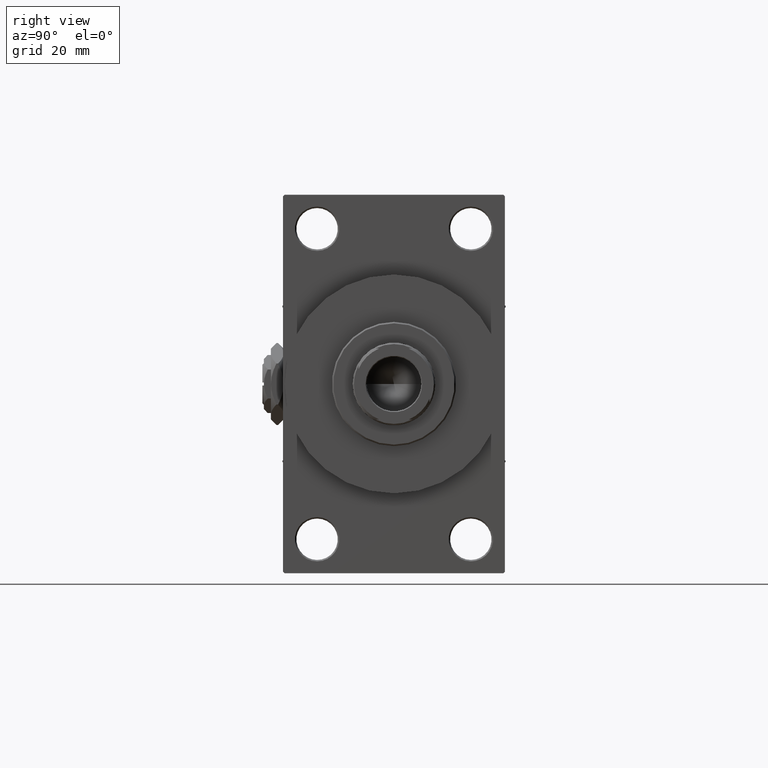
[diagram: clean part render]
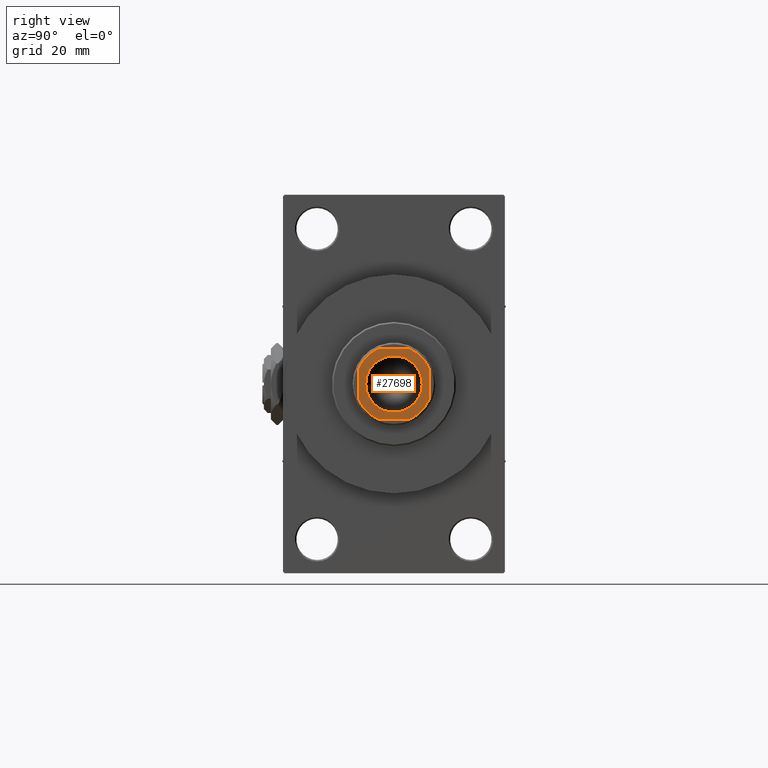
[diagram: same view with one face highlighted and labeled with its STEP entity id]
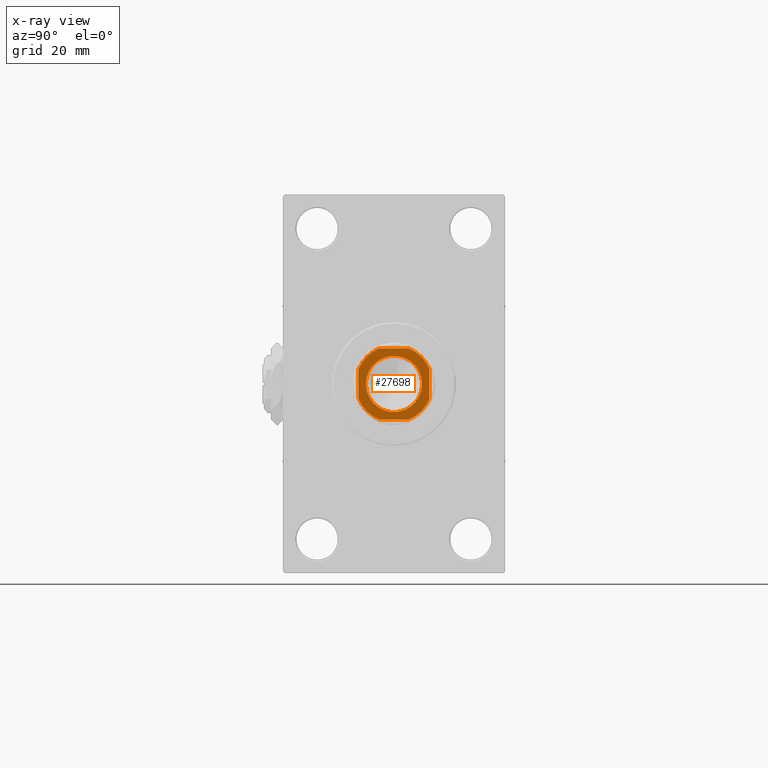
[diagram: x-ray of the same camera — body ghosted, the highlighted face saturated]
A machine part, right view. The second image highlights one B-rep face of the part: STEP entity #27698.
The next image is the same camera in x-ray: the body ghosted, the highlighted face saturated — about 0% of this face is hidden behind the body in this view.
In plain terms, the highlighted planar face has unit normal (1, 0, 0).
Its self-contained STEP definition (entity closure, byte-faithful):
#334 = EDGE_CURVE ( 'NONE', #33457, #37090, #12070, .T. ) ;
#532 = DIRECTION ( 'NONE',  ( 1.000000000000000000, 0.000000000000000000, 0.000000000000000000 ) ) ;
#534 = DIRECTION ( 'NONE',  ( 1.000000000000000000, 0.000000000000000000, 0.000000000000000000 ) ) ;
#751 = AXIS2_PLACEMENT_3D ( 'NONE', #36994, #21536, #17799 ) ;
#1022 = DIRECTION ( 'NONE',  ( -0.000000000000000000, 0.000000000000000000, 1.000000000000000000 ) ) ;
#2096 = EDGE_CURVE ( 'NONE', #4416, #39444, #43982, .T. ) ;
#2742 = EDGE_LOOP ( 'NONE', ( #36209, #34141 ) ) ;
#3051 = VERTEX_POINT ( 'NONE', #26614 ) ;
#4416 = VERTEX_POINT ( 'NONE', #17370 ) ;
#5309 = DIRECTION ( 'NONE',  ( 1.000000000000000000, 0.000000000000000000, 0.000000000000000000 ) ) ;
#5472 = DIRECTION ( 'NONE',  ( 1.000000000000000000, 0.000000000000000000, 0.000000000000000000 ) ) ;
#6842 = VECTOR ( 'NONE', #28274, 1000.000000000000000 ) ;
#7904 = CIRCLE ( 'NONE', #35755, 9.550000000000002487 ) ;
#8435 = AXIS2_PLACEMENT_3D ( 'NONE', #16449, #8986, #38899 ) ;
#8785 = VERTEX_POINT ( 'NONE', #28029 ) ;
#8986 = DIRECTION ( 'NONE',  ( -0.000000000000000000, 0.000000000000000000, 1.000000000000000000 ) ) ;
#9087 = DIRECTION ( 'NONE',  ( 7.228014483236695816E-17, -1.000000000000000000, 0.000000000000000000 ) ) ;
#9899 = AXIS2_PLACEMENT_3D ( 'NONE', #40362, #13189, #5472 ) ;
#10839 = DIRECTION ( 'NONE',  ( 0.000000000000000000, -0.000000000000000000, -1.000000000000000000 ) ) ;
#12070 = LINE ( 'NONE', #39486, #16304 ) ;
#12222 = PLANE ( 'NONE',  #9899 ) ;
#13189 = DIRECTION ( 'NONE',  ( -0.000000000000000000, 0.000000000000000000, 1.000000000000000000 ) ) ;
#13245 = EDGE_CURVE ( 'NONE', #15540, #3051, #16669, .T. ) ;
#15152 = VERTEX_POINT ( 'NONE', #28137 ) ;
#15540 = VERTEX_POINT ( 'NONE', #32322 ) ;
#16304 = VECTOR ( 'NONE', #9087, 1000.000000000000000 ) ;
#16449 = CARTESIAN_POINT ( 'NONE',  ( 0.000000000000000000, 0.000000000000000000, 142.0000000000000284 ) ) ;
#16669 = CIRCLE ( 'NONE', #22250, 9.550000000000002487 ) ;
#17370 = CARTESIAN_POINT ( 'NONE',  ( 12.00000000000000178, -4.999999999999976907, 142.0000000000000284 ) ) ;
#17754 = EDGE_CURVE ( 'NONE', #22376, #41500, #31238, .T. ) ;
#17799 = DIRECTION ( 'NONE',  ( 1.000000000000000000, 0.000000000000000000, 0.000000000000000000 ) ) ;
#17827 = CARTESIAN_POINT ( 'NONE',  ( 0.000000000000000000, 0.000000000000000000, 142.0000000000000284 ) ) ;
#18236 = ORIENTED_EDGE ( 'NONE', *, *, #48044, .T. ) ;
#18975 = ORIENTED_EDGE ( 'NONE', *, *, #334, .T. ) ;
#20843 = DIRECTION ( 'NONE',  ( -0.000000000000000000, 0.000000000000000000, 1.000000000000000000 ) ) ;
#21536 = DIRECTION ( 'NONE',  ( -0.000000000000000000, 0.000000000000000000, 1.000000000000000000 ) ) ;
#22227 = CARTESIAN_POINT ( 'NONE',  ( -12.00000000000000000, 11.99999999999999645, 142.0000000000000284 ) ) ;
#22250 = AXIS2_PLACEMENT_3D ( 'NONE', #37761, #10839, #33770 ) ;
#22376 = VERTEX_POINT ( 'NONE', #39979 ) ;
#22713 = CARTESIAN_POINT ( 'NONE',  ( 4.999999999999971578, -12.00000000000000355, 142.0000000000000284 ) ) ;
#23105 = VECTOR ( 'NONE', #29948, 1000.000000000000000 ) ;
#23688 = CARTESIAN_POINT ( 'NONE',  ( 0.000000000000000000, 0.000000000000000000, 142.0000000000000284 ) ) ;
#24245 = CARTESIAN_POINT ( 'NONE',  ( -11.99999999999999822, -12.00000000000000355, 142.0000000000000284 ) ) ;
#24585 = EDGE_CURVE ( 'NONE', #41500, #4416, #32069, .T. ) ;
#26614 = CARTESIAN_POINT ( 'NONE',  ( 9.550000000000002487, 0.000000000000000000, 142.0000000000000284 ) ) ;
#27195 = LINE ( 'NONE', #22227, #23105 ) ;
#27698 = ADVANCED_FACE ( 'NONE', ( #31158, #46368 ), #12222, .T. ) ;
#28029 = CARTESIAN_POINT ( 'NONE',  ( 4.999999999999984013, 11.99999999999999645, 142.0000000000000284 ) ) ;
#28137 = CARTESIAN_POINT ( 'NONE',  ( -4.999999999999944933, 11.99999999999999645, 142.0000000000000284 ) ) ;
#28274 = DIRECTION ( 'NONE',  ( -2.891205793294678326E-16, 1.000000000000000000, -0.000000000000000000 ) ) ;
#28409 = ORIENTED_EDGE ( 'NONE', *, *, #40052, .T. ) ;
#28728 = ORIENTED_EDGE ( 'NONE', *, *, #2096, .T. ) ;
#29036 = DIRECTION ( 'NONE',  ( 1.000000000000000000, 0.000000000000000000, 0.000000000000000000 ) ) ;
#29092 = CARTESIAN_POINT ( 'NONE',  ( 11.99999999999999822, 4.999999999999980460, 142.0000000000000284 ) ) ;
#29537 = AXIS2_PLACEMENT_3D ( 'NONE', #17827, #20843, #29036 ) ;
#29912 = CIRCLE ( 'NONE', #8435, 12.99999999999999112 ) ;
#29948 = DIRECTION ( 'NONE',  ( -1.000000000000000000, -0.000000000000000000, -0.000000000000000000 ) ) ;
#31158 = FACE_BOUND ( 'NONE', #2742, .T. ) ;
#31238 = LINE ( 'NONE', #24245, #36735 ) ;
#31530 = CARTESIAN_POINT ( 'NONE',  ( 11.99999999999999645, 11.99999999999999645, 142.0000000000000284 ) ) ;
#32069 = CIRCLE ( 'NONE', #47966, 12.99999999999999289 ) ;
#32322 = CARTESIAN_POINT ( 'NONE',  ( -9.550000000000002487, 1.169537693185722558E-15, 142.0000000000000284 ) ) ;
#33457 = VERTEX_POINT ( 'NONE', #35879 ) ;
#33770 = DIRECTION ( 'NONE',  ( 1.000000000000000000, 0.000000000000000000, 0.000000000000000000 ) ) ;
#34141 = ORIENTED_EDGE ( 'NONE', *, *, #13245, .T. ) ;
#34712 = EDGE_CURVE ( 'NONE', #39444, #8785, #29912, .T. ) ;
#34727 = ORIENTED_EDGE ( 'NONE', *, *, #46540, .T. ) ;
#35172 = DIRECTION ( 'NONE',  ( 0.000000000000000000, -0.000000000000000000, -1.000000000000000000 ) ) ;
#35755 = AXIS2_PLACEMENT_3D ( 'NONE', #39400, #35172, #534 ) ;
#35879 = CARTESIAN_POINT ( 'NONE',  ( -12.00000000000000000, 4.999999999999936051, 142.0000000000000284 ) ) ;
#36209 = ORIENTED_EDGE ( 'NONE', *, *, #40516, .T. ) ;
#36735 = VECTOR ( 'NONE', #5309, 1000.000000000000000 ) ;
#36994 = CARTESIAN_POINT ( 'NONE',  ( 0.000000000000000000, 0.000000000000000000, 142.0000000000000284 ) ) ;
#37090 = VERTEX_POINT ( 'NONE', #42699 ) ;
#37534 = CIRCLE ( 'NONE', #29537, 12.99999999999997513 ) ;
#37761 = CARTESIAN_POINT ( 'NONE',  ( 0.000000000000000000, 0.000000000000000000, 142.0000000000000284 ) ) ;
#38899 = DIRECTION ( 'NONE',  ( 1.000000000000000000, 0.000000000000000000, 0.000000000000000000 ) ) ;
#39225 = EDGE_LOOP ( 'NONE', ( #28728, #44756, #34727, #18236, #18975, #28409, #47672, #48511 ) ) ;
#39400 = CARTESIAN_POINT ( 'NONE',  ( 0.000000000000000000, 0.000000000000000000, 142.0000000000000284 ) ) ;
#39444 = VERTEX_POINT ( 'NONE', #29092 ) ;
#39486 = CARTESIAN_POINT ( 'NONE',  ( -12.00000000000000000, 11.99999999999999645, 142.0000000000000284 ) ) ;
#39979 = CARTESIAN_POINT ( 'NONE',  ( -4.999999999999971578, -12.00000000000000355, 142.0000000000000284 ) ) ;
#40052 = EDGE_CURVE ( 'NONE', #37090, #22376, #42916, .T. ) ;
#40362 = CARTESIAN_POINT ( 'NONE',  ( 0.000000000000000000, 0.000000000000000000, 142.0000000000000284 ) ) ;
#40516 = EDGE_CURVE ( 'NONE', #3051, #15540, #7904, .T. ) ;
#41500 = VERTEX_POINT ( 'NONE', #22713 ) ;
#42699 = CARTESIAN_POINT ( 'NONE',  ( -12.00000000000000000, -4.999999999999980460, 142.0000000000000284 ) ) ;
#42916 = CIRCLE ( 'NONE', #751, 12.99999999999999289 ) ;
#43982 = LINE ( 'NONE', #31530, #6842 ) ;
#44756 = ORIENTED_EDGE ( 'NONE', *, *, #34712, .T. ) ;
#46368 = FACE_OUTER_BOUND ( 'NONE', #39225, .T. ) ;
#46540 = EDGE_CURVE ( 'NONE', #8785, #15152, #27195, .T. ) ;
#47672 = ORIENTED_EDGE ( 'NONE', *, *, #17754, .T. ) ;
#47966 = AXIS2_PLACEMENT_3D ( 'NONE', #23688, #1022, #532 ) ;
#48044 = EDGE_CURVE ( 'NONE', #15152, #33457, #37534, .T. ) ;
#48511 = ORIENTED_EDGE ( 'NONE', *, *, #24585, .T. ) ;